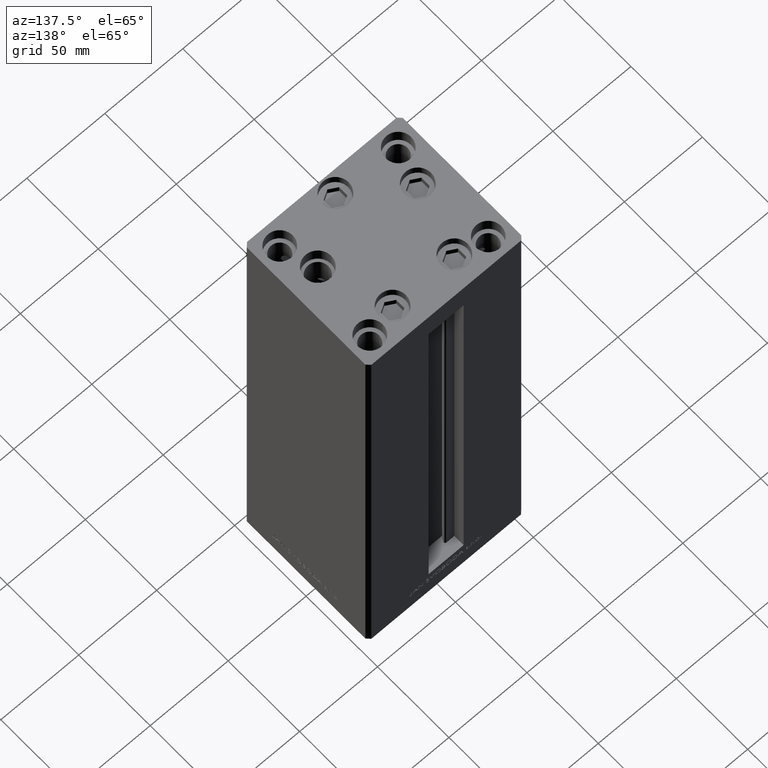
[diagram: clean part render]
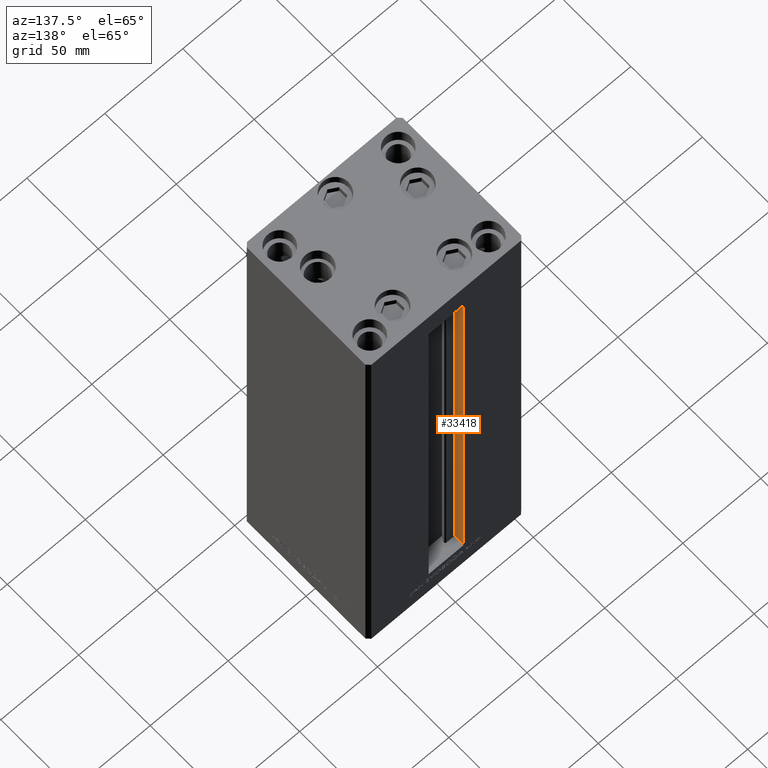
[diagram: same view with one face highlighted and labeled with its STEP entity id]
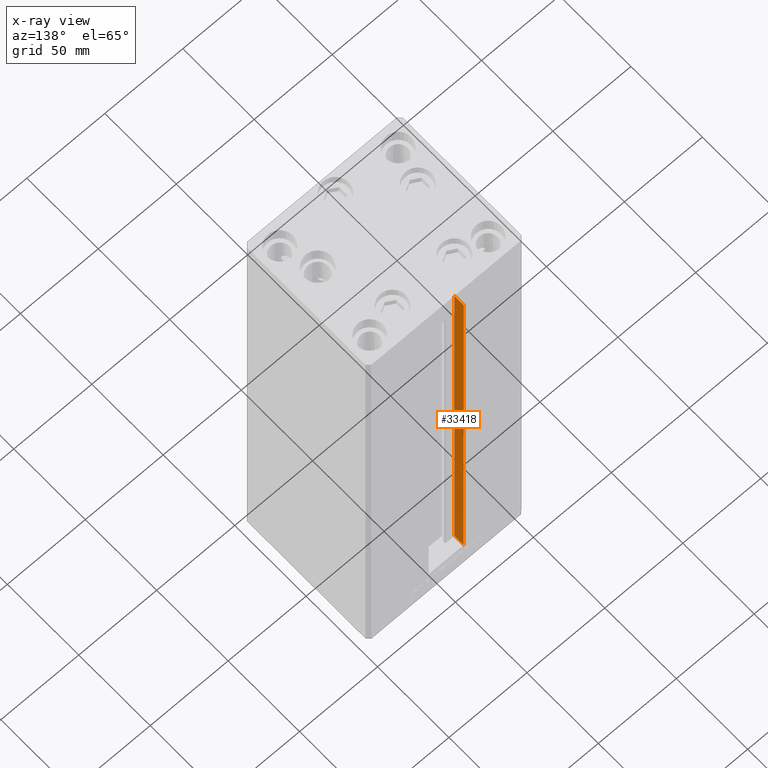
[diagram: x-ray of the same camera — body ghosted, the highlighted face saturated]
A machine part, auxiliary view. The second image highlights one B-rep face of the part: STEP entity #33418.
The next image is the same camera in x-ray: the body ghosted, the highlighted face saturated — about 0% of this face is hidden behind the body in this view.
In plain terms, the highlighted planar face has unit normal (-1, 0, 0).
Its self-contained STEP definition (entity closure, byte-faithful):
#87 = VERTEX_POINT ( 'NONE', #33734 ) ;
#181 = DIRECTION ( 'NONE',  ( -1.000000000000000000, 0.000000000000000000, 0.000000000000000000 ) ) ;
#866 = VECTOR ( 'NONE', #42245, 1000.000000000000000 ) ;
#2079 = VECTOR ( 'NONE', #36353, 1000.000000000000000 ) ;
#5992 = VERTEX_POINT ( 'NONE', #32886 ) ;
#7011 = EDGE_CURVE ( 'NONE', #36018, #87, #28521, .T. ) ;
#7229 = EDGE_LOOP ( 'NONE', ( #15833, #29126, #10782, #43034 ) ) ;
#7555 = VERTEX_POINT ( 'NONE', #16772 ) ;
#10782 = ORIENTED_EDGE ( 'NONE', *, *, #11903, .T. ) ;
#11335 = CARTESIAN_POINT ( 'NONE',  ( -11.24999999999999822, 43.50000000000000000, 0.000000000000000000 ) ) ;
#11903 = EDGE_CURVE ( 'NONE', #7555, #5992, #37696, .T. ) ;
#15108 = CARTESIAN_POINT ( 'NONE',  ( -11.24999999999999822, 36.99999999999999289, 0.000000000000000000 ) ) ;
#15833 = ORIENTED_EDGE ( 'NONE', *, *, #7011, .F. ) ;
#16084 = LINE ( 'NONE', #47007, #2079 ) ;
#16772 = CARTESIAN_POINT ( 'NONE',  ( -11.24999999999999822, 43.50000000000000000, 0.000000000000000000 ) ) ;
#17767 = VECTOR ( 'NONE', #46813, 1000.000000000000000 ) ;
#26218 = VECTOR ( 'NONE', #47292, 1000.000000000000000 ) ;
#28013 = EDGE_CURVE ( 'NONE', #7555, #36018, #16084, .T. ) ;
#28521 = LINE ( 'NONE', #44008, #26218 ) ;
#29126 = ORIENTED_EDGE ( 'NONE', *, *, #28013, .F. ) ;
#30307 = FACE_OUTER_BOUND ( 'NONE', #7229, .T. ) ;
#30517 = AXIS2_PLACEMENT_3D ( 'NONE', #15108, #181, #38665 ) ;
#32886 = CARTESIAN_POINT ( 'NONE',  ( -11.24999999999999822, 43.50000000000000000, 268.5000000000000000 ) ) ;
#33418 = ADVANCED_FACE ( 'NONE', ( #30307 ), #38908, .F. ) ;
#33734 = CARTESIAN_POINT ( 'NONE',  ( -11.24999999999999822, 36.99999999999999289, 268.5000000000000000 ) ) ;
#34646 = LINE ( 'NONE', #39446, #17767 ) ;
#36018 = VERTEX_POINT ( 'NONE', #40034 ) ;
#36353 = DIRECTION ( 'NONE',  ( -0.000000000000000000, -1.000000000000000000, -0.000000000000000000 ) ) ;
#37696 = LINE ( 'NONE', #11335, #866 ) ;
#37876 = EDGE_CURVE ( 'NONE', #87, #5992, #34646, .T. ) ;
#38665 = DIRECTION ( 'NONE',  ( 0.000000000000000000, 0.000000000000000000, 1.000000000000000000 ) ) ;
#38908 = PLANE ( 'NONE',  #30517 ) ;
#39446 = CARTESIAN_POINT ( 'NONE',  ( -11.24999999999999822, 0.000000000000000000, 268.5000000000000000 ) ) ;
#40034 = CARTESIAN_POINT ( 'NONE',  ( -11.24999999999999822, 36.99999999999999289, 0.000000000000000000 ) ) ;
#42245 = DIRECTION ( 'NONE',  ( -0.000000000000000000, -0.000000000000000000, 1.000000000000000000 ) ) ;
#43034 = ORIENTED_EDGE ( 'NONE', *, *, #37876, .F. ) ;
#44008 = CARTESIAN_POINT ( 'NONE',  ( -11.24999999999999822, 36.99999999999999289, 0.000000000000000000 ) ) ;
#46813 = DIRECTION ( 'NONE',  ( 0.000000000000000000, 1.000000000000000000, 0.000000000000000000 ) ) ;
#47007 = CARTESIAN_POINT ( 'NONE',  ( -11.24999999999999822, 36.99999999999999289, 0.000000000000000000 ) ) ;
#47292 = DIRECTION ( 'NONE',  ( -0.000000000000000000, -0.000000000000000000, 1.000000000000000000 ) ) ;